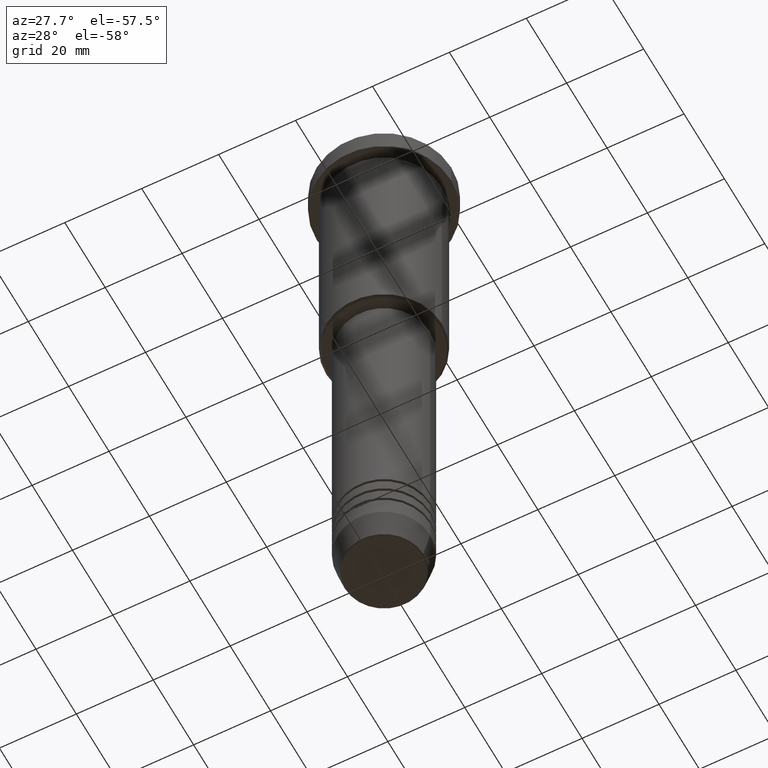
[diagram: clean part render]
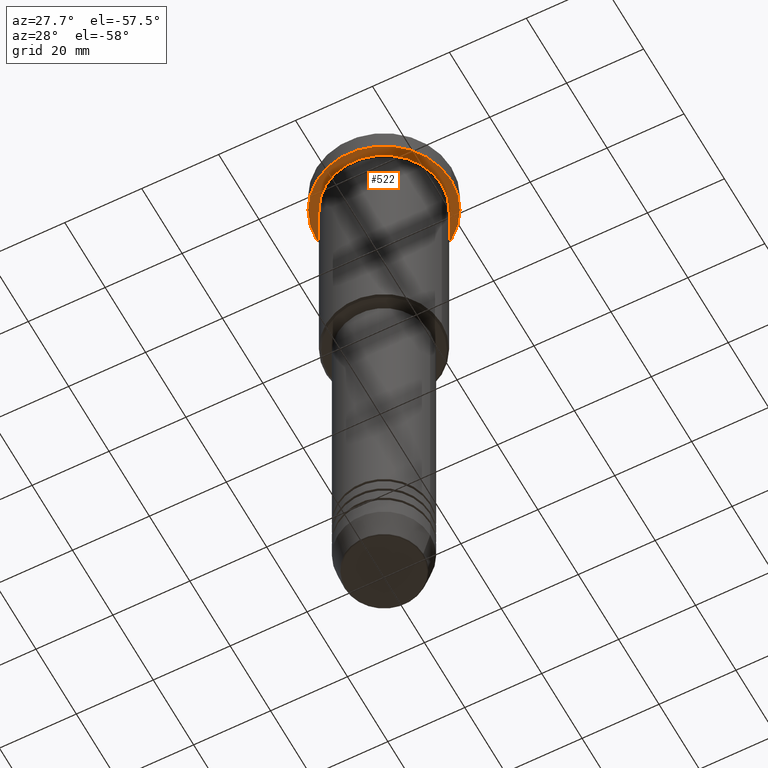
[diagram: same view with one face highlighted and labeled with its STEP entity id]
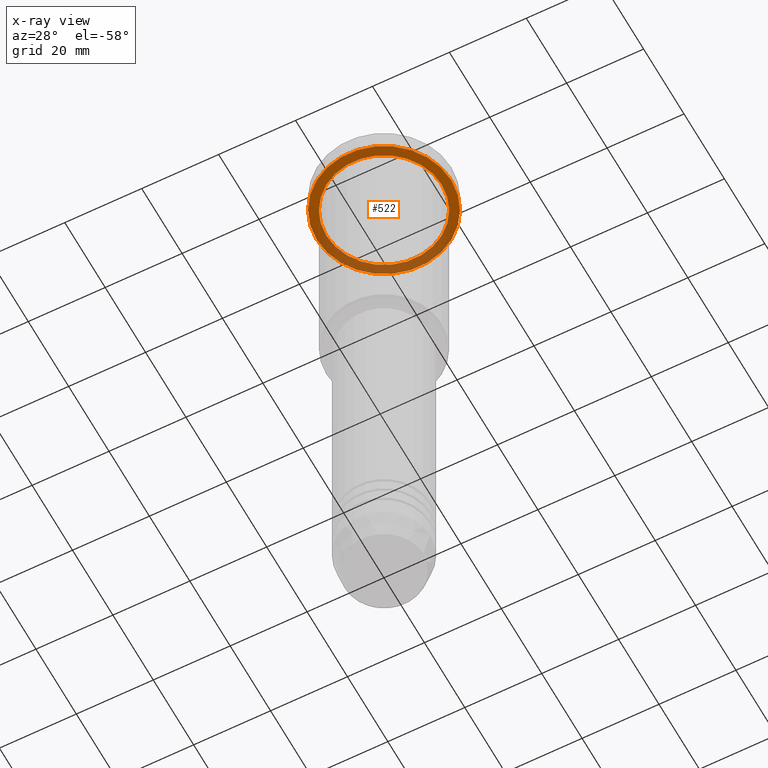
[diagram: x-ray of the same camera — body ghosted, the highlighted face saturated]
A machine part, auxiliary view. The second image highlights one B-rep face of the part: STEP entity #522.
The next image is the same camera in x-ray: the body ghosted, the highlighted face saturated — about 37% of this face is hidden behind the body in this view.
In plain terms, the highlighted planar face has unit normal (0, 0, -1).
Its self-contained STEP definition (entity closure, byte-faithful):
#9 = CARTESIAN_POINT ( 'NONE',  ( 17.50000000000000000, 0.000000000000000000, -5.999999999999995559 ) ) ;
#22 = DIRECTION ( 'NONE',  ( -0.000000000000000000, -0.000000000000000000, 1.000000000000000000 ) ) ;
#25 = CARTESIAN_POINT ( 'NONE',  ( 0.000000000000000000, 0.000000000000000000, -5.999999999999995559 ) ) ;
#34 = FACE_OUTER_BOUND ( 'NONE', #154, .T. ) ;
#36 = EDGE_CURVE ( 'NONE', #1064, #70, #68, .T. ) ;
#47 = DIRECTION ( 'NONE',  ( -0.000000000000000000, -0.000000000000000000, 1.000000000000000000 ) ) ;
#68 = CIRCLE ( 'NONE', #1151, 17.50000000000000000 ) ;
#70 = VERTEX_POINT ( 'NONE', #1050 ) ;
#109 = CIRCLE ( 'NONE', #404, 17.50000000000000000 ) ;
#110 = DIRECTION ( 'NONE',  ( 1.000000000000000000, 0.000000000000000000, 0.000000000000000000 ) ) ;
#152 = CARTESIAN_POINT ( 'NONE',  ( 0.000000000000000000, 0.000000000000000000, -5.999999999999995559 ) ) ;
#154 = EDGE_LOOP ( 'NONE', ( #317, #965 ) ) ;
#155 = CARTESIAN_POINT ( 'NONE',  ( 0.000000000000000000, 17.50000000000000000, -5.999999999999995559 ) ) ;
#176 = CARTESIAN_POINT ( 'NONE',  ( 0.000000000000000000, 0.000000000000000000, -5.999999999999995559 ) ) ;
#304 = CIRCLE ( 'NONE', #1056, 15.00000000000000000 ) ;
#314 = PLANE ( 'NONE',  #361 ) ;
#317 = ORIENTED_EDGE ( 'NONE', *, *, #36, .F. ) ;
#321 = DIRECTION ( 'NONE',  ( 1.000000000000000000, 0.000000000000000000, 0.000000000000000000 ) ) ;
#361 = AXIS2_PLACEMENT_3D ( 'NONE', #155, #728, #608 ) ;
#362 = VERTEX_POINT ( 'NONE', #1177 ) ;
#369 = DIRECTION ( 'NONE',  ( -0.000000000000000000, -0.000000000000000000, 1.000000000000000000 ) ) ;
#383 = EDGE_LOOP ( 'NONE', ( #937, #669 ) ) ;
#404 = AXIS2_PLACEMENT_3D ( 'NONE', #408, #22, #110 ) ;
#408 = CARTESIAN_POINT ( 'NONE',  ( 0.000000000000000000, 0.000000000000000000, -5.999999999999995559 ) ) ;
#522 = ADVANCED_FACE ( 'NONE', ( #861, #34 ), #314, .T. ) ;
#608 = DIRECTION ( 'NONE',  ( -1.000000000000000000, 0.000000000000000000, -0.000000000000000000 ) ) ;
#628 = DIRECTION ( 'NONE',  ( -0.000000000000000000, -0.000000000000000000, 1.000000000000000000 ) ) ;
#669 = ORIENTED_EDGE ( 'NONE', *, *, #830, .T. ) ;
#693 = VERTEX_POINT ( 'NONE', #923 ) ;
#728 = DIRECTION ( 'NONE',  ( 0.000000000000000000, 0.000000000000000000, -1.000000000000000000 ) ) ;
#818 = CIRCLE ( 'NONE', #878, 15.00000000000000000 ) ;
#830 = EDGE_CURVE ( 'NONE', #362, #693, #304, .T. ) ;
#861 = FACE_BOUND ( 'NONE', #383, .T. ) ;
#863 = EDGE_CURVE ( 'NONE', #693, #362, #818, .T. ) ;
#878 = AXIS2_PLACEMENT_3D ( 'NONE', #176, #369, #1070 ) ;
#923 = CARTESIAN_POINT ( 'NONE',  ( -15.00000000000000000, 0.000000000000000000, -5.999999999999994671 ) ) ;
#937 = ORIENTED_EDGE ( 'NONE', *, *, #863, .T. ) ;
#954 = EDGE_CURVE ( 'NONE', #70, #1064, #109, .T. ) ;
#965 = ORIENTED_EDGE ( 'NONE', *, *, #954, .F. ) ;
#1050 = CARTESIAN_POINT ( 'NONE',  ( -17.50000000000000000, 2.143131898507868248E-15, -5.999999999999995559 ) ) ;
#1056 = AXIS2_PLACEMENT_3D ( 'NONE', #25, #628, #1180 ) ;
#1064 = VERTEX_POINT ( 'NONE', #9 ) ;
#1070 = DIRECTION ( 'NONE',  ( -1.000000000000000000, 0.000000000000000000, 0.000000000000000000 ) ) ;
#1151 = AXIS2_PLACEMENT_3D ( 'NONE', #152, #47, #321 ) ;
#1177 = CARTESIAN_POINT ( 'NONE',  ( 15.00000000000000000, 1.836970198721029589E-15, -5.999999999999994671 ) ) ;
#1180 = DIRECTION ( 'NONE',  ( -1.000000000000000000, 0.000000000000000000, 0.000000000000000000 ) ) ;